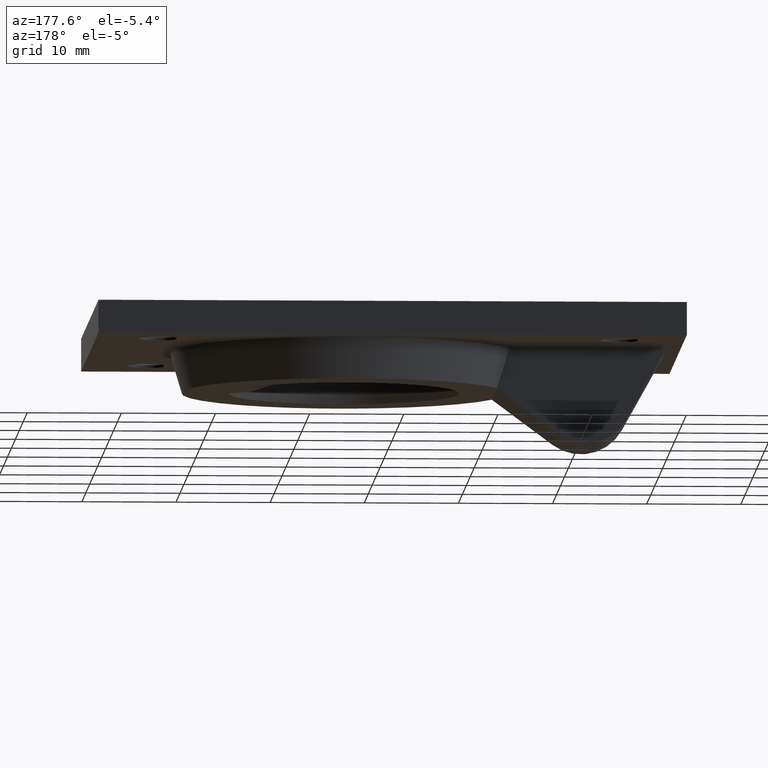
[diagram: clean part render]
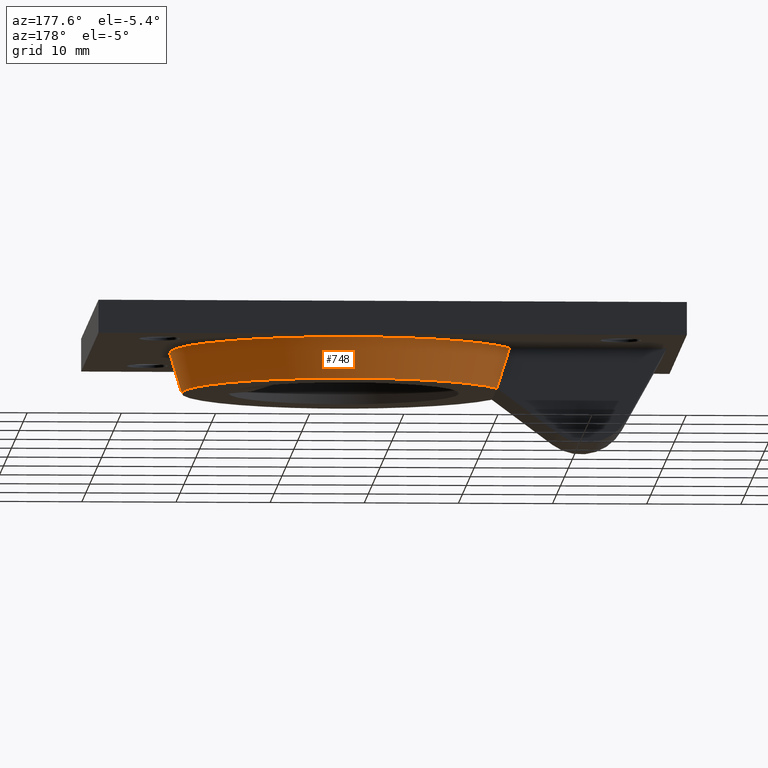
[diagram: same view with one face highlighted and labeled with its STEP entity id]
A machine part, auxiliary view. The second image highlights one B-rep face of the part: STEP entity #748.
In plain terms, the highlighted conical surface has half-angle 16.209 deg.
Its self-contained STEP definition (entity closure, byte-faithful):
#20=(
BOUNDED_CURVE()
B_SPLINE_CURVE(2,(#1274,#1275,#1276),.UNSPECIFIED.,.F.,.F.)
B_SPLINE_CURVE_WITH_KNOTS((3,3),(0.,0.450455260846372),.UNSPECIFIED.)
CURVE()
GEOMETRIC_REPRESENTATION_ITEM()
RATIONAL_B_SPLINE_CURVE((1.,1.00070532080398,1.))
REPRESENTATION_ITEM('')
);
#21=(
BOUNDED_CURVE()
B_SPLINE_CURVE(2,(#1299,#1300,#1301),.UNSPECIFIED.,.F.,.F.)
B_SPLINE_CURVE_WITH_KNOTS((3,3),(0.,0.450455260846372),.UNSPECIFIED.)
CURVE()
GEOMETRIC_REPRESENTATION_ITEM()
RATIONAL_B_SPLINE_CURVE((1.,1.0007053207992,1.))
REPRESENTATION_ITEM('')
);
#59=CONICAL_SURFACE('',#829,17.875,16.209024927808);
#119=FACE_OUTER_BOUND('',#187,.T.);
#187=EDGE_LOOP('',(#647,#648,#649,#650));
#236=CIRCLE('',#825,17.25);
#237=CIRCLE('',#828,18.5);
#390=VERTEX_POINT('',#1271);
#391=VERTEX_POINT('',#1273);
#396=VERTEX_POINT('',#1291);
#397=VERTEX_POINT('',#1298);
#471=EDGE_CURVE('',#391,#390,#20,.T.);
#481=EDGE_CURVE('',#396,#391,#236,.T.);
#483=EDGE_CURVE('',#397,#396,#21,.T.);
#488=EDGE_CURVE('',#397,#390,#237,.T.);
#647=ORIENTED_EDGE('',*,*,#488,.F.);
#648=ORIENTED_EDGE('',*,*,#483,.T.);
#649=ORIENTED_EDGE('',*,*,#481,.T.);
#650=ORIENTED_EDGE('',*,*,#471,.T.);
#748=ADVANCED_FACE('',(#119),#59,.T.);
#825=AXIS2_PLACEMENT_3D('',#1295,#1004,#1005);
#828=AXIS2_PLACEMENT_3D('',#1309,#1015,#1016);
#829=AXIS2_PLACEMENT_3D('',#1310,#1017,#1018);
#1004=DIRECTION('center_axis',(0.,0.,1.));
#1005=DIRECTION('ref_axis',(1.,0.,0.));
#1015=DIRECTION('center_axis',(0.,0.,1.));
#1016=DIRECTION('ref_axis',(1.,0.,0.));
#1017=DIRECTION('center_axis',(0.,0.,1.));
#1018=DIRECTION('ref_axis',(1.,0.,0.));
#1271=CARTESIAN_POINT('',(-13.0705080756888,6.5,0.));
#1273=CARTESIAN_POINT('',(-11.7285011812748,6.5,-4.3));
#1274=CARTESIAN_POINT('Ctrl Pts',(-11.7285011812748,6.5,-4.3));
#1275=CARTESIAN_POINT('Ctrl Pts',(-12.376042969499,6.49999999999999,-2.23664866872182));
#1276=CARTESIAN_POINT('Ctrl Pts',(-13.0705080756888,6.49999999999999,0.));
#1291=CARTESIAN_POINT('',(-11.7285011812748,-6.5,-4.3));
#1295=CARTESIAN_POINT('Origin',(4.25,0.,-4.3));
#1298=CARTESIAN_POINT('',(-13.0705080756888,-6.5,0.));
#1299=CARTESIAN_POINT('Ctrl Pts',(-13.0705080756888,-6.5,0.));
#1300=CARTESIAN_POINT('Ctrl Pts',(-12.376042969486,-6.5,-2.23664866876341));
#1301=CARTESIAN_POINT('Ctrl Pts',(-11.7285011812748,-6.5,-4.3));
#1309=CARTESIAN_POINT('Origin',(4.25,0.,0.));
#1310=CARTESIAN_POINT('Origin',(4.25,0.,-2.15));